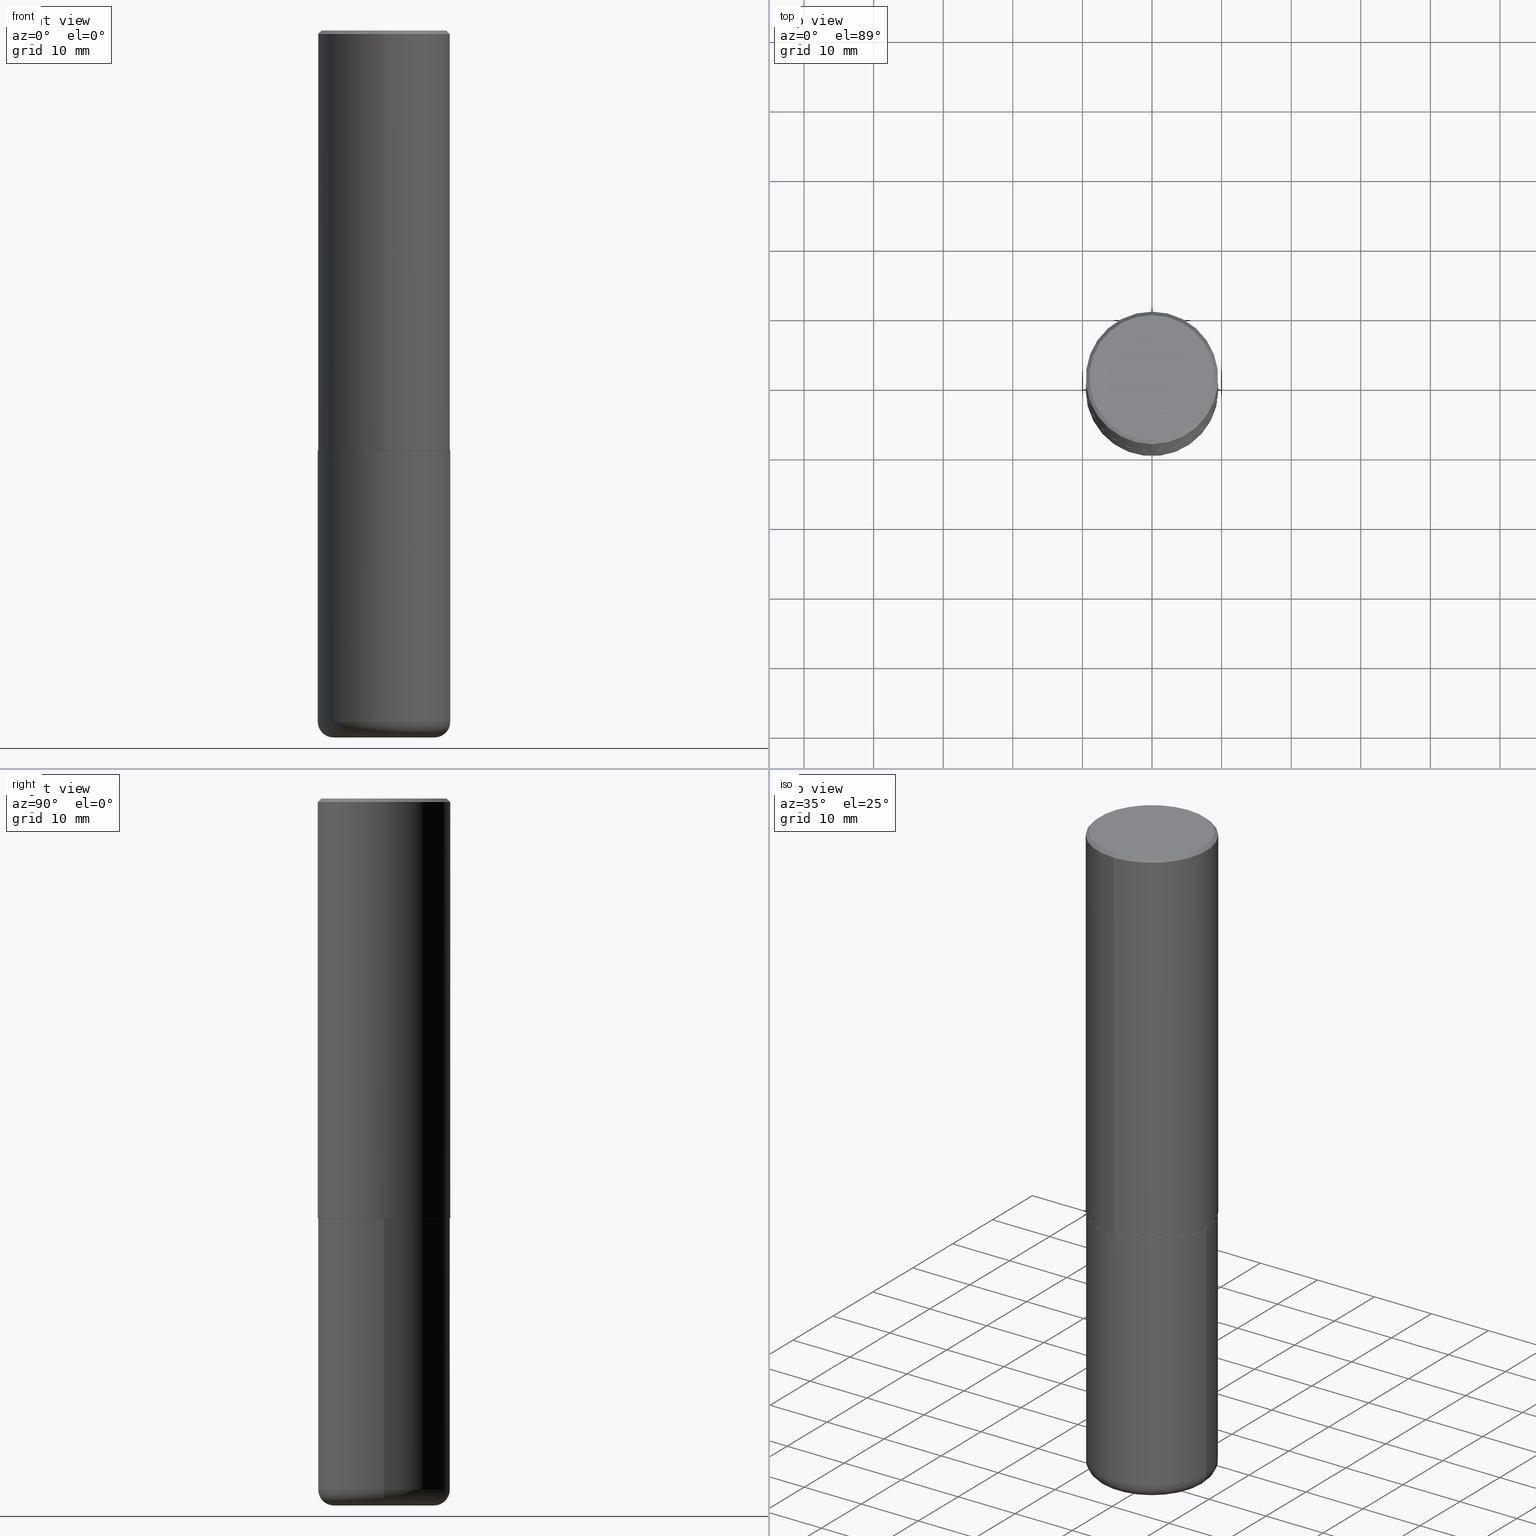
[diagram: canonical four-view strip — front | top / right | iso, engineering-drawing reading convention]
A machine part, canonical four-view strip (front | top / right | iso — engineering-drawing reading convention). The complete STEP part file that produces these views, byte-faithful:
ISO-10303-21;
HEADER;
FILE_DESCRIPTION (( 'STEP AP203' ),
    '1' );
FILE_NAME ('36637.STEP',
    '2024-03-01T17:14:27',
    ( '' ),
    ( '' ),
    'SwSTEP 2.0',
    'SolidWorks 2023',
    '' );
FILE_SCHEMA (( 'CONFIG_CONTROL_DESIGN' ));
ENDSEC;

DATA;
#1 = APPROVAL ( #181, 'UNSPECIFIED' ) ;
#2 = CARTESIAN_POINT ( 'NONE',  ( -2.618611004132294402E-15, -0.3750000000000086597, -2.373999999999998334 ) ) ;
#3 = ORIENTED_EDGE ( 'NONE', *, *, #397, .T. ) ;
#4 = APPLICATION_PROTOCOL_DEFINITION ( 'international standard', 'config_control_design', 1994, #141 ) ;
#5 = ORIENTED_EDGE ( 'NONE', *, *, #9, .T. ) ;
#6 = VECTOR ( 'NONE', #151, 39.37007874015748143 ) ;
#7 = LOCAL_TIME ( 12, 14, 27.00000000000000000, #372 ) ;
#8 = VERTEX_POINT ( 'NONE', #358 ) ;
#9 = EDGE_CURVE ( 'NONE', #200, #395, #94, .T. ) ;
#10 = APPLICATION_CONTEXT ( 'configuration controlled 3d designs of mechanical parts and assemblies' ) ;
#11 = SHAPE_DEFINITION_REPRESENTATION ( #263, #241 ) ;
#12 = CARTESIAN_POINT ( 'NONE',  ( -2.611628041454605626E-15, -0.3740000000000082703, -2.374999999999999112 ) ) ;
#13 = VERTEX_POINT ( 'NONE', #18 ) ;
#14 = VECTOR ( 'NONE', #60, 39.37007874015748143 ) ;
#15 = AXIS2_PLACEMENT_3D ( 'NONE', #286, #162, #98 ) ;
#16 = FACE_OUTER_BOUND ( 'NONE', #96, .T. ) ;
#17 = CYLINDRICAL_SURFACE ( 'NONE', #402, 0.3750000000000001665 ) ;
#18 = CARTESIAN_POINT ( 'NONE',  ( -2.504081769186607821E-15, -0.3549999999999998157, 1.423316362782658809E-15 ) ) ;
#19 = CALENDAR_DATE ( 2024, 1, 3 ) ;
#20 = AXIS2_PLACEMENT_3D ( 'NONE', #86, #314, #117 ) ;
#21 = CARTESIAN_POINT ( 'NONE',  ( 0.000000000000000000, 0.000000000000000000, 0.000000000000000000 ) ) ;
#22 = EDGE_CURVE ( 'NONE', #228, #147, #186, .T. ) ;
#23 = ORIENTED_EDGE ( 'NONE', *, *, #324, .T. ) ;
#24 = CARTESIAN_POINT ( 'NONE',  ( -0.3749999999999999445, -1.098715677577632337E-14, -3.910000000000000142 ) ) ;
#25 = EDGE_CURVE ( 'NONE', #395, #204, #274, .T. ) ;
#26 = DIRECTION ( 'NONE',  ( -6.982962677686265922E-15, -1.000000000000000000, 3.642463991552347014E-15 ) ) ;
#27 = AXIS2_PLACEMENT_3D ( 'NONE', #391, #70, #195 ) ;
#28 = CC_DESIGN_SECURITY_CLASSIFICATION ( #409, ( #111 ) ) ;
#29 = CARTESIAN_POINT ( 'NONE',  ( -4.491629458662572214E-45, 6.414377784028912006E-31, 1.836932622838302825E-16 ) ) ;
#30 = DIMENSIONAL_EXPONENTS ( 1.000000000000000000, 0.000000000000000000, 0.000000000000000000, 0.000000000000000000, 0.000000000000000000, 0.000000000000000000, 0.000000000000000000 ) ;
#31 = DIRECTION ( 'NONE',  ( -6.982962677686266711E-15, -1.000000000000000000, 3.491896057743181088E-15 ) ) ;
#32 = ORIENTED_EDGE ( 'NONE', *, *, #317, .F. ) ;
#33 = DIRECTION ( 'NONE',  ( 0.000000000000000000, 0.000000000000000000, 1.000000000000000000 ) ) ;
#34 = VERTEX_POINT ( 'NONE', #357 ) ;
#35 = PERSON_AND_ORGANIZATION ( #261, #288 ) ;
#36 = VECTOR ( 'NONE', #413, 39.37007874015748143 ) ;
#37 = ORIENTED_EDGE ( 'NONE', *, *, #317, .T. ) ;
#38 = ORIENTED_EDGE ( 'NONE', *, *, #379, .F. ) ;
#39 = DIRECTION ( 'NONE',  ( -6.982962677686266711E-15, -1.000000000000000000, 3.491481338843145583E-15 ) ) ;
#40 = EDGE_CURVE ( 'NONE', #299, #204, #302, .T. ) ;
#41 = DIRECTION ( 'NONE',  ( 1.000000000000000000, -6.982962677686265922E-15, 4.876176775795935793E-29 ) ) ;
#42 = ORIENTED_EDGE ( 'NONE', *, *, #190, .F. ) ;
#43 = PERSON_AND_ORGANIZATION ( #261, #288 ) ;
#44 = ADVANCED_FACE ( 'NONE', ( #370 ), #77, .F. ) ;
#45 = DATE_AND_TIME ( #19, #167 ) ;
#46 = DIRECTION ( 'NONE',  ( -2.445179209525068741E-29, 3.491896057743181088E-15, 1.000000000000000000 ) ) ;
#47 = DIRECTION ( 'NONE',  ( -2.445468806185136597E-29, 3.491481338843145583E-15, 1.000000000000000000 ) ) ;
#48 = AXIS2_PLACEMENT_3D ( 'NONE', #365, #210, #82 ) ;
#49 = ADVANCED_FACE ( 'NONE', ( #203 ), #406, .T. ) ;
#50 = DIRECTION ( 'NONE',  ( -6.982962677686265922E-15, -1.000000000000000000, 3.491896057743180694E-15 ) ) ;
#51 = EDGE_CURVE ( 'NONE', #200, #299, #67, .T. ) ;
#52 = FACE_OUTER_BOUND ( 'NONE', #253, .T. ) ;
#53 = ADVANCED_FACE ( 'NONE', ( #140 ), #328, .T. ) ;
#54 = ORIENTED_EDGE ( 'NONE', *, *, #124, .T. ) ;
#55 = FACE_OUTER_BOUND ( 'NONE', #144, .T. ) ;
#56 = VECTOR ( 'NONE', #257, 39.37007874015748143 ) ;
#57 = ORIENTED_EDGE ( 'NONE', *, *, #110, .F. ) ;
#58 = DIRECTION ( 'NONE',  ( -2.445179209525068741E-29, 3.491896057743181088E-15, 1.000000000000000000 ) ) ;
#59 = DIRECTION ( 'NONE',  ( -2.445468806185136597E-29, 3.491481338843145583E-15, 1.000000000000000000 ) ) ;
#60 = DIRECTION ( 'NONE',  ( 4.937700262164529898E-15, 0.7071067811865425767, -0.7071067811865524577 ) ) ;
#61 = TOROIDAL_SURFACE ( 'NONE', #20, 0.2850000000000000311, 0.08999999999999992728 ) ;
#62 = AXIS2_PLACEMENT_3D ( 'NONE', #29, #58, #221 ) ;
#63 = CARTESIAN_POINT ( 'NONE',  ( 5.804855443412511850E-29, -8.289761241082311446E-15, -2.373999999999999666 ) ) ;
#64 = CARTESIAN_POINT ( 'NONE',  ( 0.000000000000000000, 0.000000000000000000, 0.000000000000000000 ) ) ;
#65 = ORIENTED_EDGE ( 'NONE', *, *, #260, .T. ) ;
#66 = APPROVAL_STATUS ( 'not_yet_approved' ) ;
#67 = CIRCLE ( 'NONE', #415, 0.2850000000000000311 ) ;
#69 =( NAMED_UNIT ( * ) PLANE_ANGLE_UNIT ( ) SI_UNIT ( $, .RADIAN. ) );
#68 = CC_DESIGN_APPROVAL ( #371, ( #315 ) ) ;
#70 = DIRECTION ( 'NONE',  ( -2.445468806185136597E-29, 3.491481338843145583E-15, 1.000000000000000000 ) ) ;
#71 = ORIENTED_EDGE ( 'NONE', *, *, #190, .T. ) ;
#72 = DIRECTION ( 'NONE',  ( -6.982962677686266711E-15, -1.000000000000000000, 3.491896057743180694E-15 ) ) ;
#73 = EDGE_LOOP ( 'NONE', ( #194, #378, #305, #182 ) ) ;
#74 = COORDINATED_UNIVERSAL_TIME_OFFSET ( 5, 0, .BEHIND. ) ;
#75 = CALENDAR_DATE ( 2024, 1, 3 ) ;
#76 = UNCERTAINTY_MEASURE_WITH_UNIT (LENGTH_MEASURE( 1.000000000000000082E-05 ), #385, 'distance_accuracy_value', 'NONE');
#77 = PLANE ( 'NONE',  #48 ) ;
#78 = ORIENTED_EDGE ( 'NONE', *, *, #382, .F. ) ;
#79 = DATE_TIME_ROLE ( 'creation_date' ) ;
#80 = LINE ( 'NONE', #12, #306 ) ;
#81 = MECHANICAL_CONTEXT ( 'NONE', #10, 'mechanical' ) ;
#82 = DIRECTION ( 'NONE',  ( -1.000000000000000000, 6.982962677686265922E-15, -4.876176775795935793E-29 ) ) ;
#83 = AXIS2_PLACEMENT_3D ( 'NONE', #311, #184, #90 ) ;
#84 =( GEOMETRIC_REPRESENTATION_CONTEXT ( 3 ) GLOBAL_UNCERTAINTY_ASSIGNED_CONTEXT ( ( #76 ) ) GLOBAL_UNIT_ASSIGNED_CONTEXT ( ( #385, #69, #132 ) ) REPRESENTATION_CONTEXT ( 'NONE', 'WORKASPACE' ) );
#85 = APPROVAL_DATE_TIME ( #375, #349 ) ;
#86 = CARTESIAN_POINT ( 'NONE',  ( 9.561783032183883600E-29, -1.365169203487670064E-14, -3.910000000000000142 ) ) ;
#87 = APPROVAL_DATE_TIME ( #114, #1 ) ;
#88 = FACE_OUTER_BOUND ( 'NONE', #73, .T. ) ;
#89 = AXIS2_PLACEMENT_3D ( 'NONE', #411, #348, #416 ) ;
#90 = DIRECTION ( 'NONE',  ( 6.982962677686266711E-15, 1.000000000000000000, -3.494488891895537218E-15 ) ) ;
#91 = CARTESIAN_POINT ( 'NONE',  ( 2.618611004132350016E-15, 0.3749999999999998890, -0.02000000000000139513 ) ) ;
#92 = CARTESIAN_POINT ( 'NONE',  ( 2.657429831742832670E-15, 0.3739999999999917835, -2.375000000000001776 ) ) ;
#93 = CONICAL_SURFACE ( 'NONE', #237, 0.3749999999999999445, 0.7853981633974447263 ) ;
#94 = CIRCLE ( 'NONE', #160, 0.08999999999999992728 ) ;
#95 = PLANE ( 'NONE',  #275 ) ;
#96 = EDGE_LOOP ( 'NONE', ( #172, #343, #156, #412 ) ) ;
#97 = EDGE_CURVE ( 'NONE', #228, #388, #80, .T. ) ;
#98 = DIRECTION ( 'NONE',  ( -6.982962677686266711E-15, -1.000000000000000000, 3.652203200085913145E-15 ) ) ;
#99 = ORIENTED_EDGE ( 'NONE', *, *, #137, .T. ) ;
#100 = CLOSED_SHELL ( 'NONE', ( #340, #170, #256, #291, #121, #295, #153, #398 ) ) ;
#101 = EDGE_LOOP ( 'NONE', ( #285, #331, #5, #323 ) ) ;
#102 = CC_DESIGN_PERSON_AND_ORGANIZATION_ASSIGNMENT ( #240, #104, ( #111 ) ) ;
#103 = APPROVAL_DATE_TIME ( #363, #371 ) ;
#104 = PERSON_AND_ORGANIZATION_ROLE ( 'creator' ) ;
#105 = CIRCLE ( 'NONE', #287, 0.3749999999999999445 ) ;
#106 = DIRECTION ( 'NONE',  ( -6.982962677686266711E-15, -1.000000000000000000, 3.494488891895537218E-15 ) ) ;
#107 = DIRECTION ( 'NONE',  ( 1.000000000000000000, -6.982962677686266711E-15, 0.000000000000000000 ) ) ;
#108 = DIRECTION ( 'NONE',  ( 2.438088387897960049E-29, -3.491481338843145188E-15, -1.000000000000000000 ) ) ;
#109 = DIRECTION ( 'NONE',  ( -6.982962677686266711E-15, -1.000000000000000000, 3.491896057743181088E-15 ) ) ;
#110 = EDGE_CURVE ( 'NONE', #388, #259, #265, .T. ) ;
#111 = PRODUCT_DEFINITION_FORMATION_WITH_SPECIFIED_SOURCE ( 'ANY', '', #134, .NOT_KNOWN. ) ;
#112 = CARTESIAN_POINT ( 'NONE',  ( 4.890358419050158045E-31, -6.983792115486392597E-17, -0.02000000000000008715 ) ) ;
#113 = CC_DESIGN_PERSON_AND_ORGANIZATION_ASSIGNMENT ( #243, #408, ( #409 ) ) ;
#114 = DATE_AND_TIME ( #75, #246 ) ;
#115 = FACE_OUTER_BOUND ( 'NONE', #251, .T. ) ;
#116 = COORDINATED_UNIVERSAL_TIME_OFFSET ( 5, 0, .BEHIND. ) ;
#117 = DIRECTION ( 'NONE',  ( 1.000000000000000000, -6.982962677686263555E-15, 4.883557194083111219E-29 ) ) ;
#118 = AXIS2_PLACEMENT_3D ( 'NONE', #344, #148, #222 ) ;
#119 = MANIFOLD_SOLID_BREP ( 'Body-Move/Copy2[2]', #100 ) ;
#120 = CARTESIAN_POINT ( 'NONE',  ( 4.890358419050158045E-31, -6.983792115486392597E-17, -0.02000000000000008715 ) ) ;
#121 = ADVANCED_FACE ( 'NONE', ( #16 ), #17, .T. ) ;
#122 = CARTESIAN_POINT ( 'NONE',  ( -2.611628041454605626E-15, -0.3740000000000082703, -2.374999999999999112 ) ) ;
#123 = CARTESIAN_POINT ( 'NONE',  ( 0.3749999999999999445, -1.627030303900905066E-14, -3.910000000000000142 ) ) ;
#124 = EDGE_CURVE ( 'NONE', #264, #259, #296, .T. ) ;
#125 = EDGE_LOOP ( 'NONE', ( #294, #230, #191, #163 ) ) ;
#126 = PERSON_AND_ORGANIZATION_ROLE ( 'design_owner' ) ;
#127 = DIRECTION ( 'NONE',  ( 2.445179209525068741E-29, -3.491896057743180694E-15, -1.000000000000000000 ) ) ;
#128 = EDGE_LOOP ( 'NONE', ( #334, #38 ) ) ;
#129 = CARTESIAN_POINT ( 'NONE',  ( -0.3750000000000000555, -8.307444848214210473E-15, -2.375000000000000000 ) ) ;
#130 = ORIENTED_EDGE ( 'NONE', *, *, #205, .T. ) ;
#131 = CIRCLE ( 'NONE', #368, 0.3750000000000000555 ) ;
#133 = AXIS2_PLACEMENT_3D ( 'NONE', #231, #360, #72 ) ;
#132 =( NAMED_UNIT ( * ) SI_UNIT ( $, .STERADIAN. ) SOLID_ANGLE_UNIT ( ) );
#134 = PRODUCT ( '36637', '36637', '', ( #81 ) ) ;
#135 = PERSON_AND_ORGANIZATION ( #261, #288 ) ;
#136 = ORIENTED_EDGE ( 'NONE', *, *, #97, .T. ) ;
#137 = EDGE_CURVE ( 'NONE', #34, #345, #258, .T. ) ;
#138 = ORIENTED_EDGE ( 'NONE', *, *, #212, .F. ) ;
#139 = VECTOR ( 'NONE', #207, 39.37007874015748143 ) ;
#140 = FACE_OUTER_BOUND ( 'NONE', #101, .T. ) ;
#141 = APPLICATION_CONTEXT ( 'configuration controlled 3d designs of mechanical parts and assemblies' ) ;
#142 = CARTESIAN_POINT ( 'NONE',  ( 0.000000000000000000, 0.000000000000000000, 0.000000000000000000 ) ) ;
#143 = DIRECTION ( 'NONE',  ( -2.445179209525068741E-29, 3.491896057743181088E-15, 1.000000000000000000 ) ) ;
#144 = EDGE_LOOP ( 'NONE', ( #255, #149, #71, #219 ) ) ;
#145 = CC_DESIGN_APPROVAL ( #1, ( #111 ) ) ;
#146 = PERSON_AND_ORGANIZATION ( #261, #288 ) ;
#147 = VERTEX_POINT ( 'NONE', #272 ) ;
#148 = DIRECTION ( 'NONE',  ( -2.445468806185136597E-29, 3.491481338843145583E-15, 1.000000000000000000 ) ) ;
#149 = ORIENTED_EDGE ( 'NONE', *, *, #417, .T. ) ;
#150 = DIRECTION ( 'NONE',  ( 2.445179209525068741E-29, -3.491896057743181088E-15, -1.000000000000000000 ) ) ;
#151 = DIRECTION ( 'NONE',  ( -2.445468806185136877E-29, 3.491481338843145188E-15, 1.000000000000000000 ) ) ;
#152 = CONICAL_SURFACE ( 'NONE', #313, 0.3739999999999999991, 0.7853981633973118326 ) ;
#153 = ADVANCED_FACE ( 'NONE', ( #235 ), #367, .F. ) ;
#154 = DIRECTION ( 'NONE',  ( 6.982962677686266711E-15, 1.000000000000000000, -3.494488891895537218E-15 ) ) ;
#155 = LINE ( 'NONE', #284, #6 ) ;
#156 = ORIENTED_EDGE ( 'NONE', *, *, #110, .T. ) ;
#157 = CARTESIAN_POINT ( 'NONE',  ( -2.572686749164323153E-15, -0.3750000000000000555, -0.01999999999999877570 ) ) ;
#158 = EDGE_CURVE ( 'NONE', #392, #264, #178, .T. ) ;
#159 = DIRECTION ( 'NONE',  ( -1.000000000000000000, 7.105427357600996337E-15, 0.000000000000000000 ) ) ;
#160 = AXIS2_PLACEMENT_3D ( 'NONE', #325, #39, #166 ) ;
#161 = ORIENTED_EDGE ( 'NONE', *, *, #22, .T. ) ;
#162 = DIRECTION ( 'NONE',  ( -2.445179209525068741E-29, 3.491896057743181088E-15, 1.000000000000000000 ) ) ;
#163 = ORIENTED_EDGE ( 'NONE', *, *, #9, .F. ) ;
#164 = CARTESIAN_POINT ( 'NONE',  ( 2.664535259100406068E-15, 0.3749999999999921174, -2.374000000000001442 ) ) ;
#165 = EDGE_LOOP ( 'NONE', ( #279, #354, #65, #54 ) ) ;
#166 = DIRECTION ( 'NONE',  ( 1.000000000000000000, -6.982962677686273810E-15, 0.000000000000000000 ) ) ;
#168 = APPLICATION_PROTOCOL_DEFINITION ( 'international standard', 'config_control_design', 1994, #10 ) ;
#167 = LOCAL_TIME ( 12, 14, 27.00000000000000000, #116 ) ;
#169 = COORDINATED_UNIVERSAL_TIME_OFFSET ( 5, 0, .BEHIND. ) ;
#170 = ADVANCED_FACE ( 'NONE', ( #52 ), #380, .T. ) ;
#171 = DIRECTION ( 'NONE',  ( -2.445468806185136597E-29, 3.491481338843145583E-15, 1.000000000000000000 ) ) ;
#172 = ORIENTED_EDGE ( 'NONE', *, *, #158, .F. ) ;
#173 = CALENDAR_DATE ( 2024, 1, 3 ) ;
#174 = DIRECTION ( 'NONE',  ( 1.000000000000000000, -6.982962677686263555E-15, 4.883557194083111219E-29 ) ) ;
#175 = CC_DESIGN_PERSON_AND_ORGANIZATION_ASSIGNMENT ( #43, #332, ( #111 ) ) ;
#176 = AXIS2_PLACEMENT_3D ( 'NONE', #339, #407, #50 ) ;
#177 = DIRECTION ( 'NONE',  ( -2.445468806185136597E-29, 3.491481338843145583E-15, 1.000000000000000000 ) ) ;
#178 = LINE ( 'NONE', #238, #351 ) ;
#179 = DIRECTION ( 'NONE',  ( -6.982962677686266711E-15, -1.000000000000000000, 3.652203200085913145E-15 ) ) ;
#180 = CARTESIAN_POINT ( 'NONE',  ( 5.807300622622039695E-29, -8.293253137140055627E-15, -2.375000000000000444 ) ) ;
#181 = APPROVAL_STATUS ( 'not_yet_approved' ) ;
#182 = ORIENTED_EDGE ( 'NONE', *, *, #364, .F. ) ;
#183 = LINE ( 'NONE', #280, #14 ) ;
#184 = DIRECTION ( 'NONE',  ( 2.445179209525068741E-29, -3.491896057743181088E-15, -1.000000000000000000 ) ) ;
#185 = CARTESIAN_POINT ( 'NONE',  ( 0.2850000000000000311, -1.595606971851316740E-14, -4.000000000000000000 ) ) ;
#186 = CIRCLE ( 'NONE', #227, 0.3739999999999999991 ) ;
#187 = CIRCLE ( 'NONE', #330, 0.2850000000000000311 ) ;
#188 = EDGE_CURVE ( 'NONE', #204, #345, #155, .T. ) ;
#189 = CYLINDRICAL_SURFACE ( 'NONE', #403, 0.3750000000000000555 ) ;
#190 = EDGE_CURVE ( 'NONE', #259, #264, #105, .T. ) ;
#191 = ORIENTED_EDGE ( 'NONE', *, *, #25, .F. ) ;
#192 = DIRECTION ( 'NONE',  ( -2.445468806185136597E-29, 3.491481338843145583E-15, 1.000000000000000000 ) ) ;
#193 = LOCAL_TIME ( 12, 14, 27.00000000000000000, #169 ) ;
#194 = ORIENTED_EDGE ( 'NONE', *, *, #25, .T. ) ;
#195 = DIRECTION ( 'NONE',  ( 1.000000000000000000, -6.982962677686266711E-15, 0.000000000000000000 ) ) ;
#196 = ORIENTED_EDGE ( 'NONE', *, *, #22, .F. ) ;
#197 = EDGE_LOOP ( 'NONE', ( #196, #301 ) ) ;
#198 = CARTESIAN_POINT ( 'NONE',  ( -0.2850000000000000311, -1.162664523796041410E-14, -3.910000000000000142 ) ) ;
#199 = AXIS2_PLACEMENT_3D ( 'NONE', #63, #374, #26 ) ;
#200 = VERTEX_POINT ( 'NONE', #185 ) ;
#201 = COORDINATED_UNIVERSAL_TIME_OFFSET ( 5, 0, .BEHIND. ) ;
#202 = CIRCLE ( 'NONE', #282, 0.3750000000000003886 ) ;
#203 = FACE_OUTER_BOUND ( 'NONE', #128, .T. ) ;
#204 = VERTEX_POINT ( 'NONE', #24 ) ;
#205 = EDGE_CURVE ( 'NONE', #204, #395, #217, .T. ) ;
#206 = DIRECTION ( 'NONE',  ( -4.937700262163873566E-15, -0.7071067811864485408, 0.7071067811866464936 ) ) ;
#207 = DIRECTION ( 'NONE',  ( -2.445179209525069021E-29, 3.491896057743180694E-15, 1.000000000000000000 ) ) ;
#208 = CONICAL_SURFACE ( 'NONE', #83, 0.3749999999999999445, 0.7853981633974447263 ) ;
#209 = APPROVAL_PERSON_ORGANIZATION ( #335, #1, #399 ) ;
#210 = DIRECTION ( 'NONE',  ( 2.438088387897960049E-29, -3.491481338843145188E-15, -1.000000000000000000 ) ) ;
#211 = CARTESIAN_POINT ( 'NONE',  ( 5.807300622622039695E-29, -8.293253137140055627E-15, -2.375000000000000444 ) ) ;
#212 = EDGE_CURVE ( 'NONE', #392, #388, #394, .T. ) ;
#213 = CARTESIAN_POINT ( 'NONE',  ( 9.561783032183883600E-29, -1.365169203487670064E-14, -3.910000000000000142 ) ) ;
#214 = ORIENTED_EDGE ( 'NONE', *, *, #414, .T. ) ;
#215 = CARTESIAN_POINT ( 'NONE',  ( -2.572686749164323153E-15, -0.3750000000000000555, -0.01999999999999877570 ) ) ;
#217 = CIRCLE ( 'NONE', #89, 0.3750000000000000555 ) ;
#216 = FACE_OUTER_BOUND ( 'NONE', #165, .T. ) ;
#218 = CC_DESIGN_PERSON_AND_ORGANIZATION_ASSIGNMENT ( #146, #277, ( #315 ) ) ;
#219 = ORIENTED_EDGE ( 'NONE', *, *, #260, .F. ) ;
#220 = DIRECTION ( 'NONE',  ( -6.982962677686266711E-15, -1.000000000000000000, 3.652203200085913145E-15 ) ) ;
#221 = DIRECTION ( 'NONE',  ( -6.982962677686266711E-15, -1.000000000000000000, 3.491896057743180694E-15 ) ) ;
#222 = DIRECTION ( 'NONE',  ( 1.000000000000000000, -6.982962677686265922E-15, 4.876176775795935793E-29 ) ) ;
#223 = VECTOR ( 'NONE', #249, 39.37007874015748143 ) ;
#224 = DIRECTION ( 'NONE',  ( 6.982962677686265922E-15, 1.000000000000000000, -3.491896057743180694E-15 ) ) ;
#225 = ORIENTED_EDGE ( 'NONE', *, *, #382, .T. ) ;
#226 = LINE ( 'NONE', #157, #223 ) ;
#227 = AXIS2_PLACEMENT_3D ( 'NONE', #211, #143, #179 ) ;
#228 = VERTEX_POINT ( 'NONE', #122 ) ;
#229 = CARTESIAN_POINT ( 'NONE',  ( 0.3750000000000000555, -2.618611004132350016E-15, 1.828566290923476203E-29 ) ) ;
#230 = ORIENTED_EDGE ( 'NONE', *, *, #40, .T. ) ;
#231 = CARTESIAN_POINT ( 'NONE',  ( -4.491629458662572214E-45, 6.414377784028912006E-31, 1.836932622838302825E-16 ) ) ;
#232 = DIRECTION ( 'NONE',  ( 1.000000000000000000, -6.982962677686266711E-15, 0.000000000000000000 ) ) ;
#233 = PRODUCT_RELATED_PRODUCT_CATEGORY ( 'detail', '', ( #134 ) ) ;
#234 = CIRCLE ( 'NONE', #133, 0.3549999999999998157 ) ;
#235 = FACE_OUTER_BOUND ( 'NONE', #197, .T. ) ;
#236 = DIRECTION ( 'NONE',  ( -2.445179209525068741E-29, 3.491896057743181088E-15, 1.000000000000000000 ) ) ;
#237 = AXIS2_PLACEMENT_3D ( 'NONE', #120, #150, #154 ) ;
#238 = CARTESIAN_POINT ( 'NONE',  ( 2.664535259100376486E-15, 0.3750000000000001665, -1.309461021653693451E-15 ) ) ;
#239 = CC_DESIGN_PERSON_AND_ORGANIZATION_ASSIGNMENT ( #35, #126, ( #134 ) ) ;
#240 = PERSON_AND_ORGANIZATION ( #261, #288 ) ;
#241 = ADVANCED_BREP_SHAPE_REPRESENTATION ( '36637', ( #400, #119, #362 ), #84 ) ;
#242 = DIRECTION ( 'NONE',  ( -2.445179209525068741E-29, 3.491896057743181088E-15, 1.000000000000000000 ) ) ;
#243 = PERSON_AND_ORGANIZATION ( #261, #288 ) ;
#244 = CARTESIAN_POINT ( 'NONE',  ( -0.2850000000000000311, -1.146401766711631116E-14, -4.000000000000000000 ) ) ;
#245 = CYLINDRICAL_SURFACE ( 'NONE', #118, 0.3750000000000000555 ) ;
#246 = LOCAL_TIME ( 12, 14, 27.00000000000000000, #74 ) ;
#247 = CARTESIAN_POINT ( 'NONE',  ( 5.807300622622039695E-29, -8.293253137140055627E-15, -2.375000000000000444 ) ) ;
#248 = FACE_OUTER_BOUND ( 'NONE', #355, .T. ) ;
#249 = DIRECTION ( 'NONE',  ( -4.851104656540946920E-15, -0.7071067811865474617, -0.7071067811865475727 ) ) ;
#250 = CIRCLE ( 'NONE', #62, 0.3549999999999998157 ) ;
#251 = EDGE_LOOP ( 'NONE', ( #267, #3, #136, #138 ) ) ;
#252 = CARTESIAN_POINT ( 'NONE',  ( 5.804855443412511850E-29, -8.289761241082311446E-15, -2.373999999999999666 ) ) ;
#253 = EDGE_LOOP ( 'NONE', ( #225, #308, #42, #57 ) ) ;
#254 = DIRECTION ( 'NONE',  ( -6.982962677686265922E-15, -1.000000000000000000, 3.642463991552347014E-15 ) ) ;
#255 = ORIENTED_EDGE ( 'NONE', *, *, #324, .F. ) ;
#256 = ADVANCED_FACE ( 'NONE', ( #55 ), #93, .T. ) ;
#257 = DIRECTION ( 'NONE',  ( -2.445468806185136877E-29, 3.491481338843145188E-15, 1.000000000000000000 ) ) ;
#258 = CIRCLE ( 'NONE', #337, 0.3750000000000000555 ) ;
#259 = VERTEX_POINT ( 'NONE', #215 ) ;
#260 = EDGE_CURVE ( 'NONE', #8, #264, #183, .T. ) ;
#261 = PERSON ( 'UNSPECIFIED', 'UNSPECIFIED', 'UNSPECIFIED', ('UNSPECIFIED'), ('UNSPECIFIED'), ('UNSPECIFIED') ) ;
#262 = EDGE_LOOP ( 'NONE', ( #99, #37 ) ) ;
#263 = PRODUCT_DEFINITION_SHAPE ( 'NONE', 'NONE',  #315 ) ;
#264 = VERTEX_POINT ( 'NONE', #91 ) ;
#265 = LINE ( 'NONE', #269, #139 ) ;
#266 = AXIS2_PLACEMENT_3D ( 'NONE', #198, #319, #159 ) ;
#267 = ORIENTED_EDGE ( 'NONE', *, *, #271, .F. ) ;
#268 = CONICAL_SURFACE ( 'NONE', #377, 0.3739999999999999991, 0.7853981633973118326 ) ;
#269 = CARTESIAN_POINT ( 'NONE',  ( -2.618611004132351200E-15, -0.3750000000000001665, 1.309461021653693451E-15 ) ) ;
#270 = ADVANCED_FACE ( 'NONE', ( #381 ), #61, .T. ) ;
#271 = EDGE_CURVE ( 'NONE', #147, #392, #376, .T. ) ;
#272 = CARTESIAN_POINT ( 'NONE',  ( 2.660982545421634357E-15, 0.3739999999999917835, -2.375000000000001776 ) ) ;
#273 = APPROVAL_ROLE ( '' ) ;
#274 = CIRCLE ( 'NONE', #27, 0.3750000000000000555 ) ;
#275 = AXIS2_PLACEMENT_3D ( 'NONE', #353, #127, #224 ) ;
#276 = ADVANCED_FACE ( 'NONE', ( #88 ), #245, .T. ) ;
#277 = PERSON_AND_ORGANIZATION_ROLE ( 'creator' ) ;
#278 = DIRECTION ( 'NONE',  ( -2.445179209525068741E-29, 3.491896057743181088E-15, 1.000000000000000000 ) ) ;
#279 = ORIENTED_EDGE ( 'NONE', *, *, #417, .F. ) ;
#280 = CARTESIAN_POINT ( 'NONE',  ( 2.618611004132350016E-15, 0.3749999999999998890, -0.02000000000000139513 ) ) ;
#281 = CLOSED_SHELL ( 'NONE', ( #276, #270, #44, #342, #53, #49 ) ) ;
#282 = AXIS2_PLACEMENT_3D ( 'NONE', #252, #356, #254 ) ;
#283 = DIRECTION ( 'NONE',  ( -2.445179209525068741E-29, 3.491896057743181088E-15, 1.000000000000000000 ) ) ;
#284 = CARTESIAN_POINT ( 'NONE',  ( -0.3750000000000000555, 2.664535259100376091E-15, -1.844600658845589598E-29 ) ) ;
#285 = ORIENTED_EDGE ( 'NONE', *, *, #40, .F. ) ;
#286 = CARTESIAN_POINT ( 'NONE',  ( 5.807300622622039695E-29, -8.293253137140055627E-15, -2.375000000000000444 ) ) ;
#287 = AXIS2_PLACEMENT_3D ( 'NONE', #112, #309, #418 ) ;
#288 = ORGANIZATION ( 'UNSPECIFIED', 'UNSPECIFIED', '' ) ;
#289 = ORIENTED_EDGE ( 'NONE', *, *, #97, .F. ) ;
#290 = FACE_OUTER_BOUND ( 'NONE', #322, .T. ) ;
#291 = ADVANCED_FACE ( 'NONE', ( #216 ), #208, .T. ) ;
#292 = ORIENTED_EDGE ( 'NONE', *, *, #188, .F. ) ;
#293 = DIRECTION ( 'NONE',  ( -2.445468806185136597E-29, 3.491481338843145583E-15, 1.000000000000000000 ) ) ;
#294 = ORIENTED_EDGE ( 'NONE', *, *, #51, .T. ) ;
#295 = ADVANCED_FACE ( 'NONE', ( #115 ), #152, .T. ) ;
#296 = CIRCLE ( 'NONE', #361, 0.3749999999999999445 ) ;
#297 = ORIENTED_EDGE ( 'NONE', *, *, #364, .T. ) ;
#298 = DATE_TIME_ROLE ( 'classification_date' ) ;
#299 = VERTEX_POINT ( 'NONE', #244 ) ;
#300 = CALENDAR_DATE ( 2024, 1, 3 ) ;
#301 = ORIENTED_EDGE ( 'NONE', *, *, #397, .F. ) ;
#302 = CIRCLE ( 'NONE', #266, 0.08999999999999992728 ) ;
#303 = CARTESIAN_POINT ( 'NONE',  ( 9.781875224740546387E-29, -1.396592535537258233E-14, -4.000000000000000000 ) ) ;
#304 = APPROVAL_STATUS ( 'not_yet_approved' ) ;
#305 = ORIENTED_EDGE ( 'NONE', *, *, #137, .F. ) ;
#306 = VECTOR ( 'NONE', #206, 39.37007874015748143 ) ;
#307 = CIRCLE ( 'NONE', #15, 0.3739999999999999991 ) ;
#308 = ORIENTED_EDGE ( 'NONE', *, *, #158, .T. ) ;
#309 = DIRECTION ( 'NONE',  ( -2.445179209525068741E-29, 3.491896057743181088E-15, 1.000000000000000000 ) ) ;
#310 = APPROVAL_ROLE ( '' ) ;
#311 = CARTESIAN_POINT ( 'NONE',  ( 4.890358419050158045E-31, -6.983792115486392597E-17, -0.02000000000000008715 ) ) ;
#312 = FACE_OUTER_BOUND ( 'NONE', #404, .T. ) ;
#314 = DIRECTION ( 'NONE',  ( -2.445468806185136597E-29, 3.491481338843145583E-15, 1.000000000000000000 ) ) ;
#313 = AXIS2_PLACEMENT_3D ( 'NONE', #180, #278, #220 ) ;
#315 = PRODUCT_DEFINITION ( 'UNKNOWN', '', #111, #393 ) ;
#316 = CARTESIAN_POINT ( 'NONE',  ( 0.000000000000000000, 0.000000000000000000, 0.000000000000000000 ) ) ;
#317 = EDGE_CURVE ( 'NONE', #345, #34, #131, .T. ) ;
#318 = LINE ( 'NONE', #229, #56 ) ;
#319 = DIRECTION ( 'NONE',  ( 7.105427357601001859E-15, 1.000000000000000000, -3.491481338843145583E-15 ) ) ;
#320 =( LENGTH_UNIT ( ) NAMED_UNIT ( * ) SI_UNIT ( $, .METRE. ) );
#321 = AXIS2_PLACEMENT_3D ( 'NONE', #303, #108, #401 ) ;
#322 = EDGE_LOOP ( 'NONE', ( #214, #23 ) ) ;
#323 = ORIENTED_EDGE ( 'NONE', *, *, #205, .F. ) ;
#324 = EDGE_CURVE ( 'NONE', #13, #8, #250, .T. ) ;
#325 = CARTESIAN_POINT ( 'NONE',  ( 0.2850000000000000311, -1.564183639801728729E-14, -3.910000000000000142 ) ) ;
#326 = DATE_AND_TIME ( #300, #193 ) ;
#327 = DIRECTION ( 'NONE',  ( 1.000000000000000000, -6.982962677686266711E-15, 0.000000000000000000 ) ) ;
#328 = TOROIDAL_SURFACE ( 'NONE', #329, 0.2850000000000000311, 0.08999999999999992728 ) ;
#329 = AXIS2_PLACEMENT_3D ( 'NONE', #213, #47, #174 ) ;
#330 = AXIS2_PLACEMENT_3D ( 'NONE', #390, #293, #327 ) ;
#331 = ORIENTED_EDGE ( 'NONE', *, *, #379, .T. ) ;
#332 = PERSON_AND_ORGANIZATION_ROLE ( 'design_supplier' ) ;
#333 = CARTESIAN_POINT ( 'NONE',  ( 9.781875224740546387E-29, -1.396592535537258233E-14, -4.000000000000000000 ) ) ;
#334 = ORIENTED_EDGE ( 'NONE', *, *, #51, .F. ) ;
#335 = PERSON_AND_ORGANIZATION ( #261, #288 ) ;
#336 = CARTESIAN_POINT ( 'NONE',  ( 4.890358419050158045E-31, -6.983792115486392597E-17, -0.02000000000000008715 ) ) ;
#337 = AXIS2_PLACEMENT_3D ( 'NONE', #405, #177, #107 ) ;
#338 = CC_DESIGN_APPROVAL ( #349, ( #409 ) ) ;
#339 = CARTESIAN_POINT ( 'NONE',  ( 5.807300622622038574E-29, -8.293253137140055627E-15, -2.375000000000000000 ) ) ;
#340 = ADVANCED_FACE ( 'NONE', ( #312 ), #268, .T. ) ;
#341 = DIRECTION ( 'NONE',  ( -2.445179209525069021E-29, 3.491896057743180694E-15, 1.000000000000000000 ) ) ;
#342 = ADVANCED_FACE ( 'NONE', ( #248 ), #189, .T. ) ;
#343 = ORIENTED_EDGE ( 'NONE', *, *, #212, .T. ) ;
#344 = CARTESIAN_POINT ( 'NONE',  ( 0.000000000000000000, 0.000000000000000000, 0.000000000000000000 ) ) ;
#345 = VERTEX_POINT ( 'NONE', #129 ) ;
#346 = DIRECTION ( 'NONE',  ( 1.000000000000000000, -6.982962677686266711E-15, 0.000000000000000000 ) ) ;
#347 = CARTESIAN_POINT ( 'NONE',  ( 5.807988414689699417E-29, -8.292268179752470118E-15, -2.375000000000000000 ) ) ;
#348 = DIRECTION ( 'NONE',  ( -2.445468806185136597E-29, 3.491481338843145583E-15, 1.000000000000000000 ) ) ;
#349 = APPROVAL ( #304, 'UNSPECIFIED' ) ;
#351 = VECTOR ( 'NONE', #341, 39.37007874015748143 ) ;
#350 = DIRECTION ( 'NONE',  ( -6.982962677686266711E-15, -1.000000000000000000, 3.652203200085913145E-15 ) ) ;
#352 = CC_DESIGN_DATE_AND_TIME_ASSIGNMENT ( #326, #298, ( #409 ) ) ;
#353 = CARTESIAN_POINT ( 'NONE',  ( 2.478951750578623420E-15, 0.3549999999999998157, -1.147776469356913422E-15 ) ) ;
#354 = ORIENTED_EDGE ( 'NONE', *, *, #414, .F. ) ;
#355 = EDGE_LOOP ( 'NONE', ( #292, #130, #297, #32 ) ) ;
#356 = DIRECTION ( 'NONE',  ( -2.445179209525068741E-29, 3.491896057743181088E-15, 1.000000000000000000 ) ) ;
#357 = CARTESIAN_POINT ( 'NONE',  ( 0.3750000000000000555, -1.091087918388482013E-14, -2.375000000000000000 ) ) ;
#358 = CARTESIAN_POINT ( 'NONE',  ( 2.548781377355486718E-15, 0.3549999999999998157, -1.055929838214998293E-15 ) ) ;
#359 = SECURITY_CLASSIFICATION_LEVEL ( 'unclassified' ) ;
#360 = DIRECTION ( 'NONE',  ( -2.445179209525068741E-29, 3.491896057743181088E-15, 1.000000000000000000 ) ) ;
#361 = AXIS2_PLACEMENT_3D ( 'NONE', #336, #46, #106 ) ;
#362 = AXIS2_PLACEMENT_3D ( 'NONE', #64, #33, #366 ) ;
#363 = DATE_AND_TIME ( #173, #386 ) ;
#364 = EDGE_CURVE ( 'NONE', #395, #34, #318, .T. ) ;
#365 = CARTESIAN_POINT ( 'NONE',  ( 5.807988414689699417E-29, -8.292268179752470118E-15, -2.375000000000000000 ) ) ;
#366 = DIRECTION ( 'NONE',  ( 1.000000000000000000, 0.000000000000000000, 0.000000000000000000 ) ) ;
#367 = PLANE ( 'NONE',  #176 ) ;
#368 = AXIS2_PLACEMENT_3D ( 'NONE', #347, #59, #346 ) ;
#369 = APPROVAL_PERSON_ORGANIZATION ( #135, #349, #310 ) ;
#370 = FACE_OUTER_BOUND ( 'NONE', #262, .T. ) ;
#371 = APPROVAL ( #66, 'UNSPECIFIED' ) ;
#372 = COORDINATED_UNIVERSAL_TIME_OFFSET ( 5, 0, .BEHIND. ) ;
#373 = ORIENTED_EDGE ( 'NONE', *, *, #271, .T. ) ;
#374 = DIRECTION ( 'NONE',  ( -2.445179209525068741E-29, 3.491896057743181088E-15, 1.000000000000000000 ) ) ;
#375 = DATE_AND_TIME ( #410, #7 ) ;
#376 = LINE ( 'NONE', #92, #36 ) ;
#377 = AXIS2_PLACEMENT_3D ( 'NONE', #247, #283, #350 ) ;
#378 = ORIENTED_EDGE ( 'NONE', *, *, #188, .T. ) ;
#379 = EDGE_CURVE ( 'NONE', #299, #200, #187, .T. ) ;
#380 = CYLINDRICAL_SURFACE ( 'NONE', #383, 0.3750000000000001665 ) ;
#381 = FACE_OUTER_BOUND ( 'NONE', #125, .T. ) ;
#382 = EDGE_CURVE ( 'NONE', #388, #392, #202, .T. ) ;
#383 = AXIS2_PLACEMENT_3D ( 'NONE', #21, #242, #31 ) ;
#385 =( CONVERSION_BASED_UNIT ( 'INCH', #396 ) LENGTH_UNIT ( ) NAMED_UNIT ( #30 ) );
#384 = APPROVAL_PERSON_ORGANIZATION ( #389, #371, #273 ) ;
#386 = LOCAL_TIME ( 12, 14, 27.00000000000000000, #201 ) ;
#387 = CC_DESIGN_DATE_AND_TIME_ASSIGNMENT ( #45, #79, ( #315 ) ) ;
#388 = VERTEX_POINT ( 'NONE', #2 ) ;
#389 = PERSON_AND_ORGANIZATION ( #261, #288 ) ;
#390 = CARTESIAN_POINT ( 'NONE',  ( 9.781875224740546387E-29, -1.396592535537258233E-14, -4.000000000000000000 ) ) ;
#391 = CARTESIAN_POINT ( 'NONE',  ( 9.561783032183883600E-29, -1.365169203487670064E-14, -3.910000000000000142 ) ) ;
#392 = VERTEX_POINT ( 'NONE', #164 ) ;
#393 = DESIGN_CONTEXT ( 'detailed design', #141, 'design' ) ;
#394 = CIRCLE ( 'NONE', #199, 0.3750000000000003886 ) ;
#395 = VERTEX_POINT ( 'NONE', #123 ) ;
#396 = LENGTH_MEASURE_WITH_UNIT ( LENGTH_MEASURE( 0.02539999999999999897 ), #320 );
#397 = EDGE_CURVE ( 'NONE', #147, #228, #307, .T. ) ;
#398 = ADVANCED_FACE ( 'NONE', ( #290 ), #95, .F. ) ;
#399 = APPROVAL_ROLE ( '' ) ;
#400 = MANIFOLD_SOLID_BREP ( 'Body-Move/Copy2[1]', #281 ) ;
#401 = DIRECTION ( 'NONE',  ( -1.000000000000000000, 6.982962677686265922E-15, -4.876176775795935793E-29 ) ) ;
#402 = AXIS2_PLACEMENT_3D ( 'NONE', #142, #236, #109 ) ;
#403 = AXIS2_PLACEMENT_3D ( 'NONE', #316, #192, #41 ) ;
#404 = EDGE_LOOP ( 'NONE', ( #161, #373, #78, #289 ) ) ;
#405 = CARTESIAN_POINT ( 'NONE',  ( 5.807988414689699417E-29, -8.292268179752470118E-15, -2.375000000000000000 ) ) ;
#406 = PLANE ( 'NONE',  #321 ) ;
#407 = DIRECTION ( 'NONE',  ( -2.445179209525068741E-29, 3.491896057743180694E-15, 1.000000000000000000 ) ) ;
#408 = PERSON_AND_ORGANIZATION_ROLE ( 'classification_officer' ) ;
#409 = SECURITY_CLASSIFICATION ( '', '', #359 ) ;
#410 = CALENDAR_DATE ( 2024, 1, 3 ) ;
#411 = CARTESIAN_POINT ( 'NONE',  ( 9.561783032183883600E-29, -1.365169203487670064E-14, -3.910000000000000142 ) ) ;
#412 = ORIENTED_EDGE ( 'NONE', *, *, #124, .F. ) ;
#413 = DIRECTION ( 'NONE',  ( 5.024295867787376081E-15, 0.7071067811864534258, 0.7071067811866416086 ) ) ;
#414 = EDGE_CURVE ( 'NONE', #8, #13, #234, .T. ) ;
#415 = AXIS2_PLACEMENT_3D ( 'NONE', #333, #171, #232 ) ;
#416 = DIRECTION ( 'NONE',  ( 1.000000000000000000, -6.982962677686266711E-15, 0.000000000000000000 ) ) ;
#417 = EDGE_CURVE ( 'NONE', #13, #259, #226, .T. ) ;
#418 = DIRECTION ( 'NONE',  ( -6.982962677686266711E-15, -1.000000000000000000, 3.494488891895537218E-15 ) ) ;
ENDSEC;
END-ISO-10303-21;
